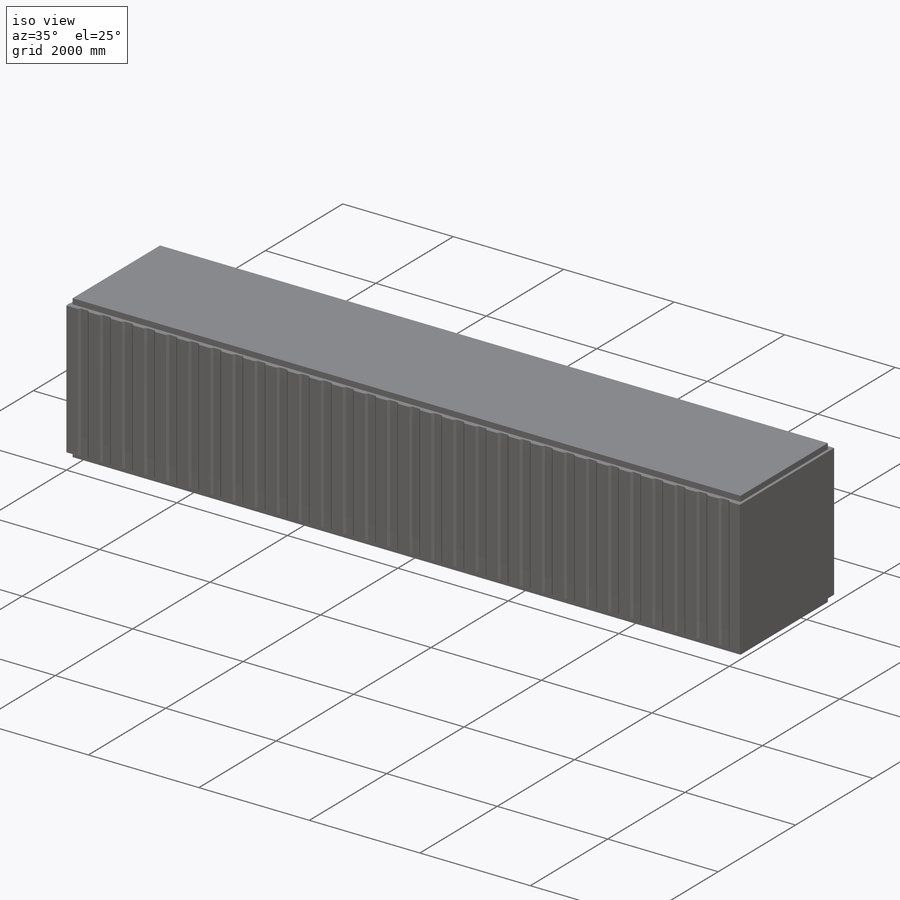
[diagram: iso view]
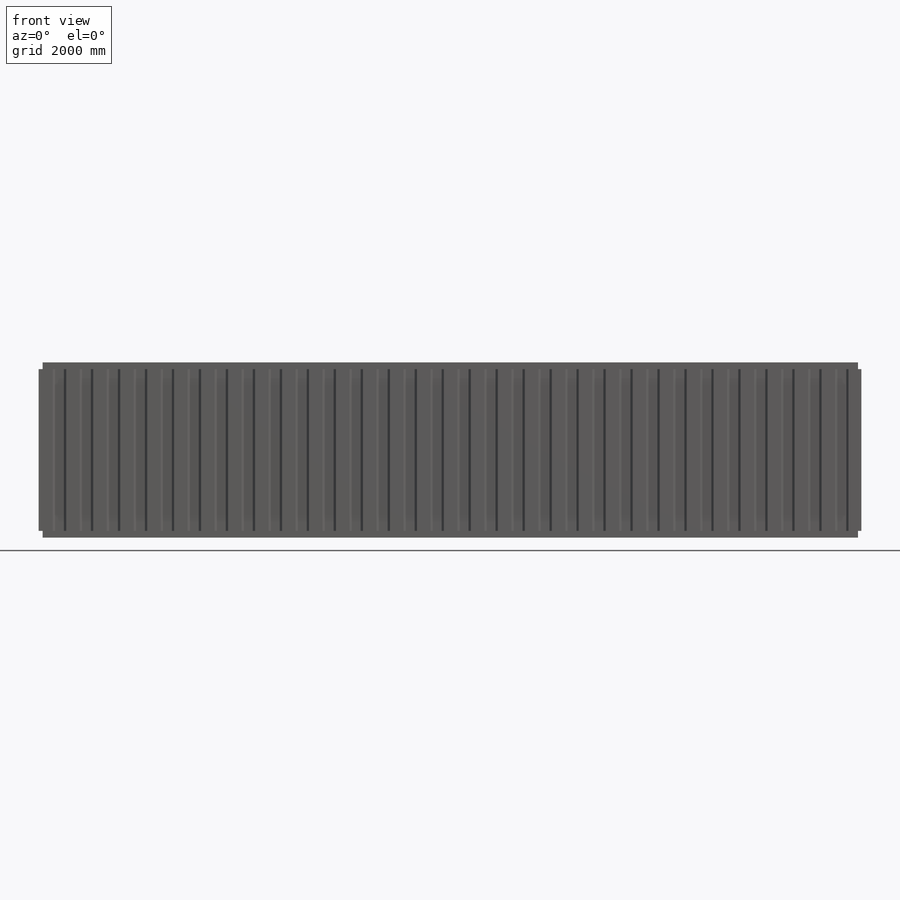
[diagram: front view]
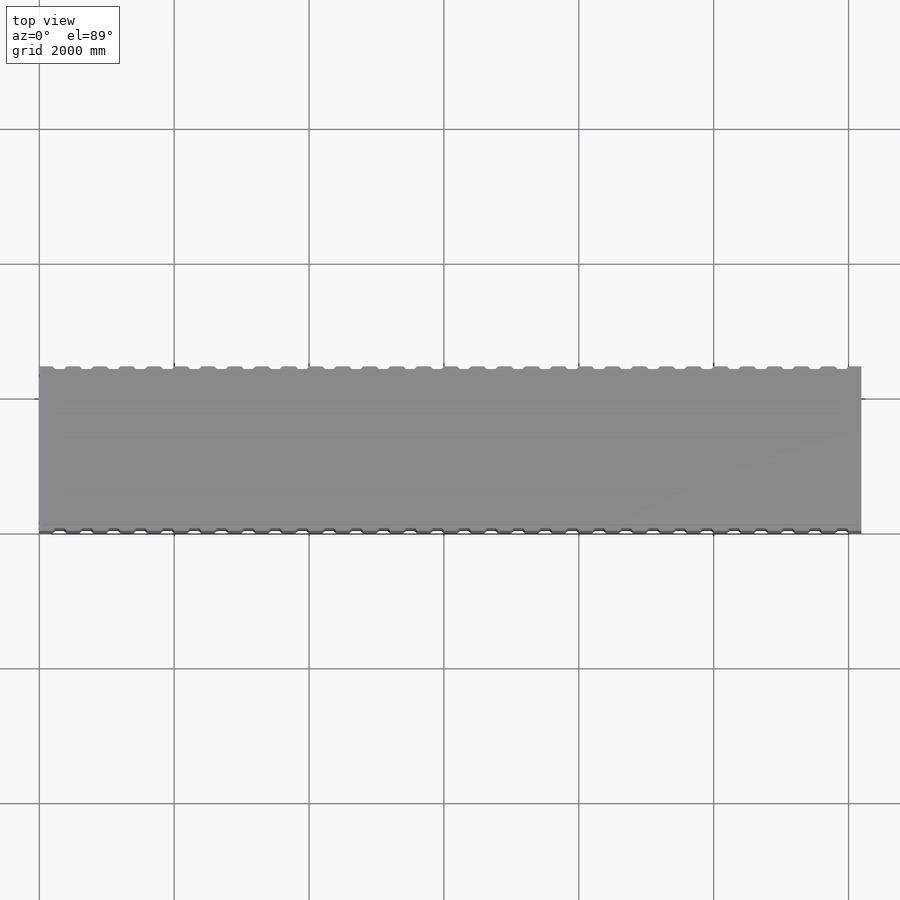
[diagram: top view]
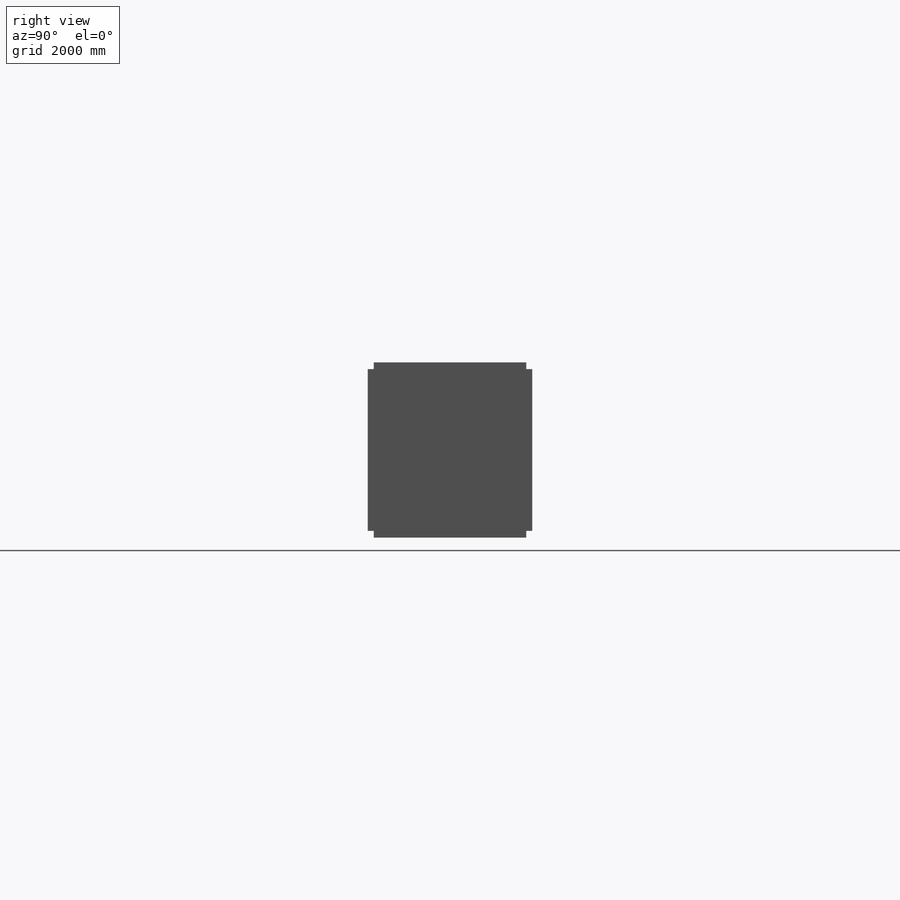
[diagram: right view]
SOLIDWORKS PART (.sldprt)
format: sldprt  version: not decoded by parser v0  size: 1,346,560 bytes
history: native  units: mm
features: sketch x12, extrude x9, plane x7, material x1, cut_extrude x1 (+11 scaffold rows collapsed)
feature tree (41):
  scaffold x11  (default folders/planes/origin — collapsed)
  material  "Material <not specified>"
  sketch  "Sketch1"  dims[c1.D1=200.0mm c1.D2=200.0mm c2.D1=31.0 c2.D2=32.0 c3.D1=2400.0mm c3.D5=50.0mm c3.D6=10.0mm c3.D7=5.0mm]
  extrude  "Boss-Extrude1"  [1 undecoded]
  sketch  "Sketch1<2>"  dims[D1=10.0mm]
  sketch  "Sketch2"
  extrude  "Boss-Extrude2"  Depth=100mm
  plane  "Plane1"  Offset=0mm
  sketch  "Sketch3"
  extrude  "Boss-Extrude3"  Depth=10mm
  sketch  "Sketch4"
  extrude  "Boss-Extrude4"  Depth=100mm
  plane  "Plane2"  Offset=0mm
  sketch  "Sketch5"  dims[D1=150.0mm]
  cut_extrude  "Cut-Extrude1"  Depth=50000mm
  sketch  "Sketch6"
  extrude  "Boss-Extrude5"  Depth=30mm
  plane  "Plane3"  Offset=10mm
  sketch  "Sketch7"
  extrude  "Boss-Extrude6"  Depth=30mm
  plane  "Plane4"  Offset=200mm
  plane  "Plane5"  Offset=0mm
  sketch  "Sketch8"
  extrude  "Boss-Extrude7"  Depth=20mm
  plane  "Plane6"  Offset=0mm
  sketch  "Sketch9"  dims[D1=2300.0mm]
  extrude  "Boss-Extrude8"  Depth=40mm
  plane  "Plane7"  Offset=0mm
  sketch  "Sketch10"
  extrude  "Boss-Extrude9"  Depth=40mm
  sketch  "Sketch11"
decode coverage: 13 of 22 modeling features carry decoded parameters
note: 1 parameter value undecoded
note: suppression state not decoded; provenance and decode notes live in map.json
